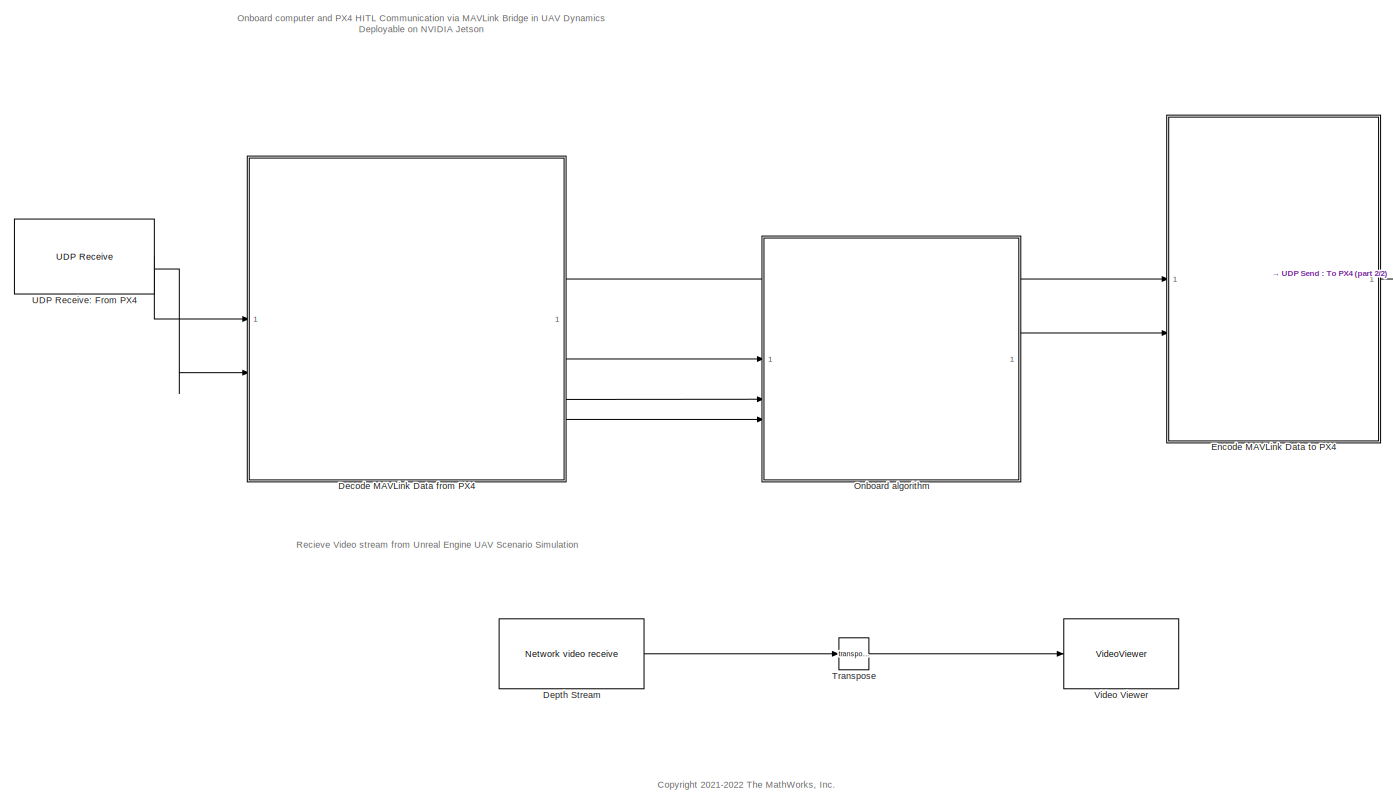
[diagram: root canvas - part 1/2, most of the canvas]
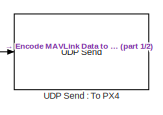
[diagram: root canvas - part 2/2, middle right region]
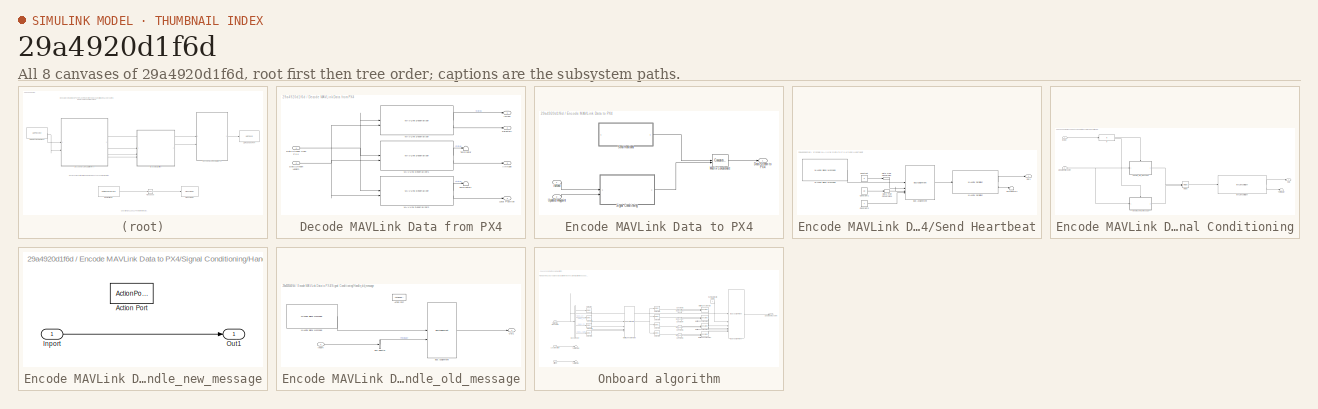
[diagram: thumbnail index - all 8 canvases of the model, root first then tree order]
MODEL slx_29a4920d1f6d
KIND model
CONFIG AbsTol = auto
CONFIG EnableMultiTasking = off
CONFIG FixedStep = auto
CONFIG MaxStep = auto
CONFIG MinStep = auto
CONFIG RelTol = 1e-3
CONFIG SampleTimeConstraint = Unconstrained
CONFIG SolverName = FixedStepAuto
CONFIG StartTime = 0.0
CONFIG StopTime = inf
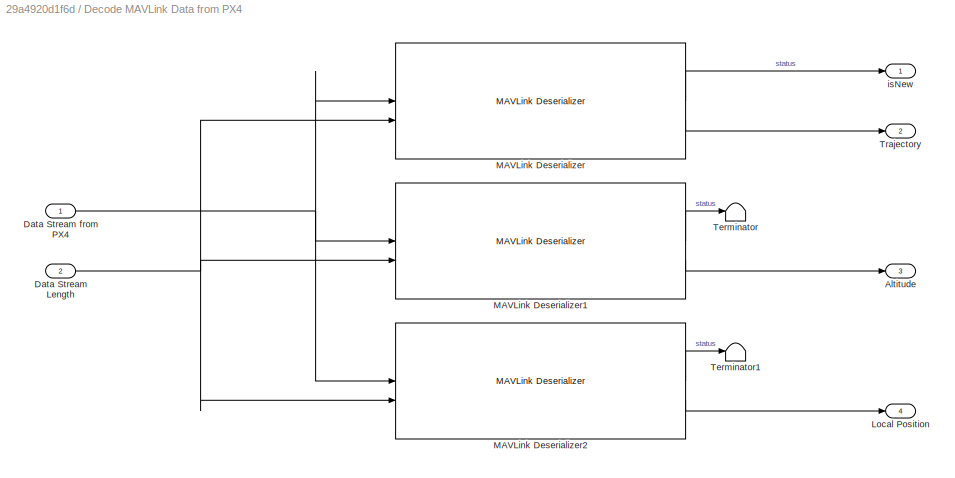
BLOCK [SubSystem] Decode MAVLink Data from PX4
BLOCK [Outport] Decode MAVLink Data from PX4/Altitude
  Port = 3
BLOCK [Inport] Decode MAVLink Data from PX4/Data Stream Length
  Port = 2
BLOCK [Inport] Decode MAVLink Data from PX4/Data Stream from PX4
BLOCK [Outport] Decode MAVLink Data from PX4/Local Position 
  Port = 4
BLOCK [Reference] Decode MAVLink Data from PX4/MAVLink Deserializer  REF=uavmavlinklib/MAVLink Deserializer
  SourceBlock = uavmavlinklib/MAVLink Deserializer
  SourceType = MAVLink Deserializer
BLOCK [Reference] Decode MAVLink Data from PX4/MAVLink Deserializer1  REF=uavmavlinklib/MAVLink Deserializer
  SourceBlock = uavmavlinklib/MAVLink Deserializer
  SourceType = MAVLink Deserializer
BLOCK [Reference] Decode MAVLink Data from PX4/MAVLink Deserializer2  REF=uavmavlinklib/MAVLink Deserializer
  SourceBlock = uavmavlinklib/MAVLink Deserializer
  SourceType = MAVLink Deserializer
BLOCK [Terminator] Decode MAVLink Data from PX4/Terminator
BLOCK [Terminator] Decode MAVLink Data from PX4/Terminator1
BLOCK [Outport] Decode MAVLink Data from PX4/Trajectory
  Port = 2
BLOCK [Outport] Decode MAVLink Data from PX4/isNew
BLOCK [Reference] Depth Stream  REF=nvidiaAVlib/Network video receive
  SourceBlock = nvidiaAVlib/Network video receive
  SourceType = nvidiacoder.common.GstVisionDataReceive
BLOCK [SubSystem] Encode MAVLink Data to PX4
BLOCK [Outport] Encode MAVLink Data to PX4/Data Stream to PX4
BLOCK [Concatenate] Encode MAVLink Data to PX4/Matrix Concatenate
  ConcatenateDimension = 2
BLOCK [SubSystem] Encode MAVLink Data to PX4/Send Heartbeat
BLOCK [BusAssignment] Encode MAVLink Data to PX4/Send Heartbeat/Bus Assignment
  AssignedSignals = Payload.autopilot,Payload.type,Payload.system_status
BLOCK [Constant] Encode MAVLink Data to PX4/Send Heartbeat/Constant
  SampleTime = -1
  Value = 8
BLOCK [Constant] Encode MAVLink Data to PX4/Send Heartbeat/Constant1
  SampleTime = -1
  Value = 18
BLOCK [Constant] Encode MAVLink Data to PX4/Send Heartbeat/Constant2
  OutDataTypeStr = uint8
  SampleTime = -1
  Value = 4
BLOCK [DataTypeConversion] Encode MAVLink Data to PX4/Send Heartbeat/Data Type Conversion
  OutDataTypeStr = uint8
  RndMeth = Floor
  SaturateOnIntegerOverflow = off
BLOCK [DataTypeConversion] Encode MAVLink Data to PX4/Send Heartbeat/Data Type Conversion1
  OutDataTypeStr = uint8
  RndMeth = Floor
  SaturateOnIntegerOverflow = off
BLOCK [Reference] Encode MAVLink Data to PX4/Send Heartbeat/MAVLink Blank Message  REF=uavmavlinklib/MAVLink Blank Message
  SourceBlock = uavmavlinklib/MAVLink Blank Message
  SourceType = MAVLink Blank Message
BLOCK [Reference] Encode MAVLink Data to PX4/Send Heartbeat/MAVLink Serializer  REF=uavmavlinklib/MAVLink Serializer
  SourceBlock = uavmavlinklib/MAVLink Serializer
  SourceType = MAVLink Serializer
BLOCK [Outport] Encode MAVLink Data to PX4/Send Heartbeat/Out1
BLOCK [Terminator] Encode MAVLink Data to PX4/Send Heartbeat/Terminator4
BLOCK [SubSystem] Encode MAVLink Data to PX4/Signal Conditioning
BLOCK [SubSystem] Encode MAVLink Data to PX4/Signal Conditioning/Handle_new_message
  TreatAsAtomicUnit = on
BLOCK [ActionPort] Encode MAVLink Data to PX4/Signal Conditioning/Handle_new_message/Action Port
  ActionPortLabel = else
BLOCK [Inport] Encode MAVLink Data to PX4/Signal Conditioning/Handle_new_message/Inport
BLOCK [Outport] Encode MAVLink Data to PX4/Signal Conditioning/Handle_new_message/Out1
BLOCK [SubSystem] Encode MAVLink Data to PX4/Signal Conditioning/Handle_old_message
  TreatAsAtomicUnit = on
BLOCK [ActionPort] Encode MAVLink Data to PX4/Signal Conditioning/Handle_old_message/Action Port
  ActionPortLabel = if(u1==0)
BLOCK [BusAssignment] Encode MAVLink Data to PX4/Signal Conditioning/Handle_old_message/Bus Assignment
  AssignedSignals = Payload
BLOCK [BusSelector] Encode MAVLink Data to PX4/Signal Conditioning/Handle_old_message/Bus Selector
  OutputSignals = Payload
BLOCK [Inport] Encode MAVLink Data to PX4/Signal Conditioning/Handle_old_message/Inport
BLOCK [Reference] Encode MAVLink Data to PX4/Signal Conditioning/Handle_old_message/MAVLink Blank Message  REF=uavmavlinklib/MAVLink Blank Message
  SourceBlock = uavmavlinklib/MAVLink Blank Message
  SourceType = MAVLink Blank Message
BLOCK [Outport] Encode MAVLink Data to PX4/Signal Conditioning/Handle_old_message/Out1
BLOCK [If] Encode MAVLink Data to PX4/Signal Conditioning/If
  IfExpression = u1==0
BLOCK [Reference] Encode MAVLink Data to PX4/Signal Conditioning/MAVLink Serializer  REF=uavmavlinklib/MAVLink Serializer
  SourceBlock = uavmavlinklib/MAVLink Serializer
  SourceType = MAVLink Serializer
BLOCK [Merge] Encode MAVLink Data to PX4/Signal Conditioning/Merge
BLOCK [Outport] Encode MAVLink Data to PX4/Signal Conditioning/Out1
BLOCK [Terminator] Encode MAVLink Data to PX4/Signal Conditioning/Terminator
BLOCK [Inport] Encode MAVLink Data to PX4/Signal Conditioning/Updated Waypoint
  Port = 2
BLOCK [Inport] Encode MAVLink Data to PX4/Signal Conditioning/isNew
BLOCK [Inport] Encode MAVLink Data to PX4/Updated Waypoint
  Port = 2
BLOCK [Inport] Encode MAVLink Data to PX4/isNew
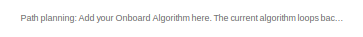
[diagram: Onboard algorithm - part 1/3, top left region]
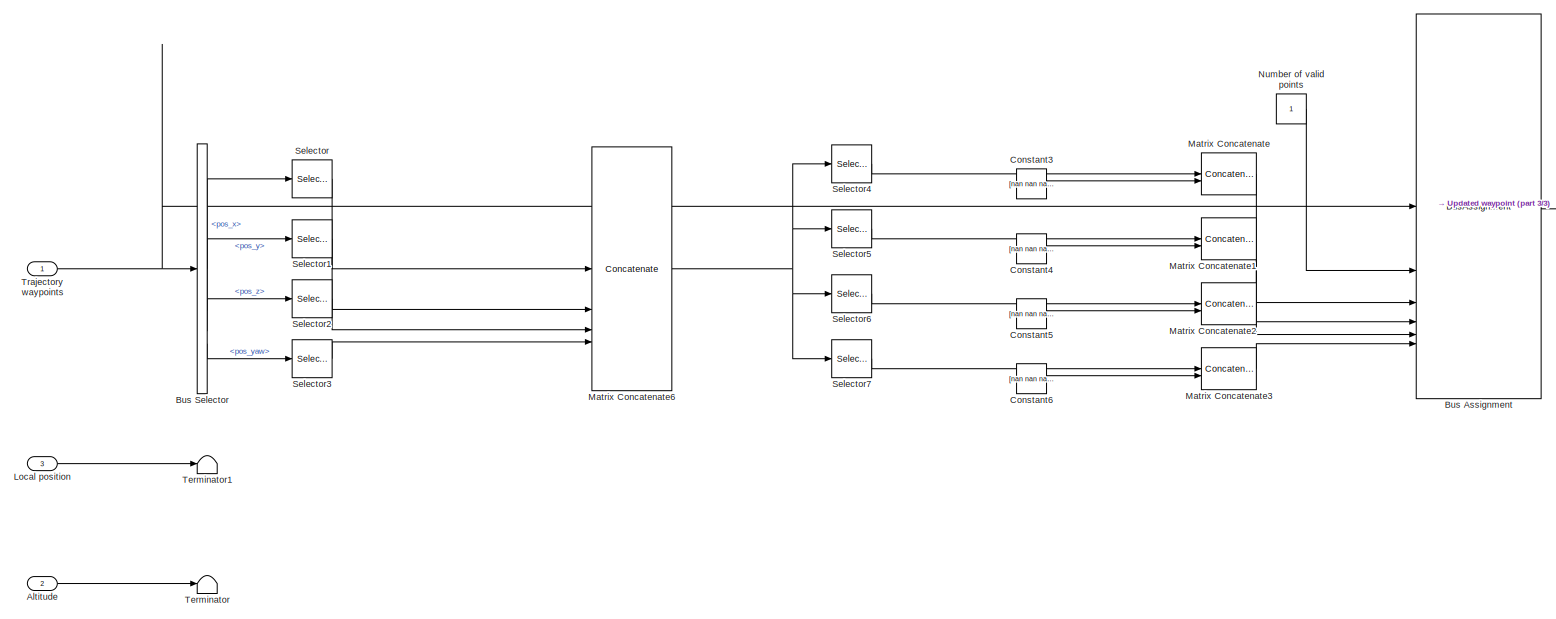
[diagram: Onboard algorithm - part 2/3, most of the canvas]
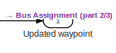
[diagram: Onboard algorithm - part 3/3, middle right region]
BLOCK [SubSystem] Onboard algorithm
BLOCK [Inport] Onboard algorithm/Altitude
  Port = 2
BLOCK [BusAssignment] Onboard algorithm/Bus Assignment
  AssignedSignals = Payload.valid_points,Payload.pos_x,Payload.pos_y,Payload.pos_z,Payload.pos_yaw
BLOCK [BusSelector] Onboard algorithm/Bus Selector
  OutputSignals = Payload.pos_x,Payload.pos_y,Payload.pos_z,Payload.pos_yaw
BLOCK [Constant] Onboard algorithm/Constant3
  OutDataTypeStr = single
  SampleTime = -1
  Value = [nan nan nan nan]
BLOCK [Constant] Onboard algorithm/Constant4
  OutDataTypeStr = single
  SampleTime = -1
  Value = [nan nan nan nan]
BLOCK [Constant] Onboard algorithm/Constant5
  OutDataTypeStr = single
  SampleTime = -1
  Value = [nan nan nan nan]
BLOCK [Constant] Onboard algorithm/Constant6
  OutDataTypeStr = single
  SampleTime = -1
  Value = [nan nan nan nan]
BLOCK [Inport] Onboard algorithm/Local position
  Port = 3
BLOCK [Concatenate] Onboard algorithm/Matrix Concatenate
  ConcatenateDimension = 2
BLOCK [Concatenate] Onboard algorithm/Matrix Concatenate1
  ConcatenateDimension = 2
BLOCK [Concatenate] Onboard algorithm/Matrix Concatenate2
  ConcatenateDimension = 2
BLOCK [Concatenate] Onboard algorithm/Matrix Concatenate3
  ConcatenateDimension = 2
BLOCK [Concatenate] Onboard algorithm/Matrix Concatenate6
  Mode = Multidimensional array
  NumInputs = 4
BLOCK [Constant] Onboard algorithm/Number of valid points
  OutDataTypeStr = uint8
  SampleTime = -1
BLOCK [Selector] Onboard algorithm/Selector
  IndexOptions = Index vector (dialog)
  Indices = 2
  InputPortWidth = 5
  OutputSizes = 1
BLOCK [Selector] Onboard algorithm/Selector1
  IndexOptions = Index vector (dialog)
  Indices = 2
  InputPortWidth = 5
  OutputSizes = 1
BLOCK [Selector] Onboard algorithm/Selector2
  IndexOptions = Index vector (dialog)
  Indices = 2
  InputPortWidth = 5
  OutputSizes = 1
BLOCK [Selector] Onboard algorithm/Selector3
  IndexOptions = Index vector (dialog)
  Indices = 2
  InputPortWidth = 5
  OutputSizes = 1
BLOCK [Selector] Onboard algorithm/Selector4
  IndexOptions = Index vector (dialog)
  Indices = 1
  InputPortWidth = 4
  OutputSizes = 1
BLOCK [Selector] Onboard algorithm/Selector5
  IndexOptions = Index vector (dialog)
  Indices = 2
  InputPortWidth = 4
  OutputSizes = 1
BLOCK [Selector] Onboard algorithm/Selector6
  IndexOptions = Index vector (dialog)
  Indices = 3
  InputPortWidth = 4
  OutputSizes = 1
BLOCK [Selector] Onboard algorithm/Selector7
  IndexOptions = Index vector (dialog)
  Indices = 4
  InputPortWidth = 4
  OutputSizes = 1
BLOCK [Terminator] Onboard algorithm/Terminator
BLOCK [Terminator] Onboard algorithm/Terminator1
BLOCK [Inport] Onboard algorithm/Trajectory waypoints
BLOCK [Outport] Onboard algorithm/Updated waypoint
BLOCK [Math] Transpose
  Operator = transpose
BLOCK [Reference] UDP Receive: From PX4  REF=nvidiaSharedBlocks/UDP Receive
  SourceBlock = nvidiaSharedBlocks/UDP Receive
  SourceType = UDP Receive
BLOCK [Reference] UDP Send : To PX4  REF=nvidiaSharedBlocks/UDP Send
  SourceBlock = nvidiaSharedBlocks/UDP Send
  SourceType = UDP Send
BLOCK [VideoViewer] Video Viewer
  FigPos = [1 1038 1920 938]
  ScopeSpecificationString = vipscopes.VideoViewerScopeCfg('CurrentConfiguration', extmgr.ConfigurationSet(extmgr.Configuration('Core','General UI',true),extmgr.Configuration('Core','Source UI',true),extmgr.Configuration('Sources','WiredSimulink',true),extmgr.Configuration('Visuals','Video',true),extmgr.Configuration('Tools','Image Navigation Tools',true),extmgr.Configuration('Tools','Image Tool',true),extmgr.Configuration('T...<+73ch>
ANNOTATION (root): Onboard computer and PX4 HITL Communication via MAVLink Bridge in UAV Dynamics Deployable on NVIDIA Jetson
ANNOTATION (root): <copyright redacted>
ANNOTATION (root): Recieve Video stream from Unreal Engine UAV Scenario Simulation
ANNOTATION Onboard algorithm: Path planning: Add your Onboard Algorithm here. The current algorithm loops back the input data
NET Decode MAVLink Data from PX4/Data Stream Length:1 -> Decode MAVLink Data from PX4/MAVLink Deserializer1:2, Decode MAVLink Data from PX4/MAVLink Deserializer2:2, Decode MAVLink Data from PX4/MAVLink Deserializer:2
NET Decode MAVLink Data from PX4/Data Stream from PX4:1 -> Decode MAVLink Data from PX4/MAVLink Deserializer1:1, Decode MAVLink Data from PX4/MAVLink Deserializer2:1, Decode MAVLink Data from PX4/MAVLink Deserializer:1
LINE Decode MAVLink Data from PX4/MAVLink Deserializer1:1 -> Decode MAVLink Data from PX4/Terminator:1
LINE Decode MAVLink Data from PX4/MAVLink Deserializer1:2 -> Decode MAVLink Data from PX4/Altitude:1
LINE Decode MAVLink Data from PX4/MAVLink Deserializer2:1 -> Decode MAVLink Data from PX4/Terminator1:1
LINE Decode MAVLink Data from PX4/MAVLink Deserializer2:2 -> Decode MAVLink Data from PX4/Local Position :1
LINE Decode MAVLink Data from PX4/MAVLink Deserializer:1 -> Decode MAVLink Data from PX4/isNew:1
LINE Decode MAVLink Data from PX4/MAVLink Deserializer:2 -> Decode MAVLink Data from PX4/Trajectory:1
LINE Decode MAVLink Data from PX4:1 -> Encode MAVLink Data to PX4:1
LINE Decode MAVLink Data from PX4:2 -> Onboard algorithm:1
LINE Decode MAVLink Data from PX4:3 -> Onboard algorithm:2
LINE Decode MAVLink Data from PX4:4 -> Onboard algorithm:3
LINE Depth Stream:1 -> Transpose:1
LINE Encode MAVLink Data to PX4/Matrix Concatenate:1 -> Encode MAVLink Data to PX4/Data Stream to PX4:1
LINE Encode MAVLink Data to PX4/Send Heartbeat/Bus Assignment:1 -> Encode MAVLink Data to PX4/Send Heartbeat/MAVLink Serializer:1
LINE Encode MAVLink Data to PX4/Send Heartbeat/Constant1:1 -> Encode MAVLink Data to PX4/Send Heartbeat/Data Type Conversion1:1
LINE Encode MAVLink Data to PX4/Send Heartbeat/Constant2:1 -> Encode MAVLink Data to PX4/Send Heartbeat/Bus Assignment:4
LINE Encode MAVLink Data to PX4/Send Heartbeat/Constant:1 -> Encode MAVLink Data to PX4/Send Heartbeat/Data Type Conversion:1
LINE Encode MAVLink Data to PX4/Send Heartbeat/Data Type Conversion1:1 -> Encode MAVLink Data to PX4/Send Heartbeat/Bus Assignment:3
LINE Encode MAVLink Data to PX4/Send Heartbeat/Data Type Conversion:1 -> Encode MAVLink Data to PX4/Send Heartbeat/Bus Assignment:2
LINE Encode MAVLink Data to PX4/Send Heartbeat/MAVLink Blank Message:1 -> Encode MAVLink Data to PX4/Send Heartbeat/Bus Assignment:1
LINE Encode MAVLink Data to PX4/Send Heartbeat/MAVLink Serializer:1 -> Encode MAVLink Data to PX4/Send Heartbeat/Out1:1
LINE Encode MAVLink Data to PX4/Send Heartbeat/MAVLink Serializer:2 -> Encode MAVLink Data to PX4/Send Heartbeat/Terminator4:1
LINE Encode MAVLink Data to PX4/Send Heartbeat:1 -> Encode MAVLink Data to PX4/Matrix Concatenate:1
LINE Encode MAVLink Data to PX4/Signal Conditioning/Handle_new_message/Inport:1 -> Encode MAVLink Data to PX4/Signal Conditioning/Handle_new_message/Out1:1
LINE Encode MAVLink Data to PX4/Signal Conditioning/Handle_new_message:1 -> Encode MAVLink Data to PX4/Signal Conditioning/Merge:2
LINE Encode MAVLink Data to PX4/Signal Conditioning/Handle_old_message/Bus Assignment:1 -> Encode MAVLink Data to PX4/Signal Conditioning/Handle_old_message/Out1:1
LINE Encode MAVLink Data to PX4/Signal Conditioning/Handle_old_message/Bus Selector:1 -> Encode MAVLink Data to PX4/Signal Conditioning/Handle_old_message/Bus Assignment:2
LINE Encode MAVLink Data to PX4/Signal Conditioning/Handle_old_message/Inport:1 -> Encode MAVLink Data to PX4/Signal Conditioning/Handle_old_message/Bus Selector:1
LINE Encode MAVLink Data to PX4/Signal Conditioning/Handle_old_message/MAVLink Blank Message:1 -> Encode MAVLink Data to PX4/Signal Conditioning/Handle_old_message/Bus Assignment:1
LINE Encode MAVLink Data to PX4/Signal Conditioning/Handle_old_message:1 -> Encode MAVLink Data to PX4/Signal Conditioning/Merge:1
LINE Encode MAVLink Data to PX4/Signal Conditioning/If:1 -> Encode MAVLink Data to PX4/Signal Conditioning/Handle_old_message:ifaction
LINE Encode MAVLink Data to PX4/Signal Conditioning/If:2 -> Encode MAVLink Data to PX4/Signal Conditioning/Handle_new_message:ifaction
LINE Encode MAVLink Data to PX4/Signal Conditioning/MAVLink Serializer:1 -> Encode MAVLink Data to PX4/Signal Conditioning/Out1:1
LINE Encode MAVLink Data to PX4/Signal Conditioning/MAVLink Serializer:2 -> Encode MAVLink Data to PX4/Signal Conditioning/Terminator:1
LINE Encode MAVLink Data to PX4/Signal Conditioning/Merge:1 -> Encode MAVLink Data to PX4/Signal Conditioning/MAVLink Serializer:1
NET Encode MAVLink Data to PX4/Signal Conditioning/Updated Waypoint:1 -> Encode MAVLink Data to PX4/Signal Conditioning/Handle_new_message:1, Encode MAVLink Data to PX4/Signal Conditioning/Handle_old_message:1
LINE Encode MAVLink Data to PX4/Signal Conditioning/isNew:1 -> Encode MAVLink Data to PX4/Signal Conditioning/If:1
LINE Encode MAVLink Data to PX4/Signal Conditioning:1 -> Encode MAVLink Data to PX4/Matrix Concatenate:2
LINE Encode MAVLink Data to PX4/Updated Waypoint:1 -> Encode MAVLink Data to PX4/Signal Conditioning:2
LINE Encode MAVLink Data to PX4/isNew:1 -> Encode MAVLink Data to PX4/Signal Conditioning:1
LINE Encode MAVLink Data to PX4:1 -> UDP Send : To PX4:1
LINE Onboard algorithm/Altitude:1 -> Onboard algorithm/Terminator:1
LINE Onboard algorithm/Bus Assignment:1 -> Onboard algorithm/Updated waypoint:1
LINE Onboard algorithm/Bus Selector:1 -> Onboard algorithm/Selector:1
LINE Onboard algorithm/Bus Selector:2 -> Onboard algorithm/Selector1:1
LINE Onboard algorithm/Bus Selector:3 -> Onboard algorithm/Selector2:1
LINE Onboard algorithm/Bus Selector:4 -> Onboard algorithm/Selector3:1
LINE Onboard algorithm/Constant3:1 -> Onboard algorithm/Matrix Concatenate:2
LINE Onboard algorithm/Constant4:1 -> Onboard algorithm/Matrix Concatenate1:2
LINE Onboard algorithm/Constant5:1 -> Onboard algorithm/Matrix Concatenate2:2
LINE Onboard algorithm/Constant6:1 -> Onboard algorithm/Matrix Concatenate3:2
LINE Onboard algorithm/Local position:1 -> Onboard algorithm/Terminator1:1
LINE Onboard algorithm/Matrix Concatenate1:1 -> Onboard algorithm/Bus Assignment:4
LINE Onboard algorithm/Matrix Concatenate2:1 -> Onboard algorithm/Bus Assignment:5
LINE Onboard algorithm/Matrix Concatenate3:1 -> Onboard algorithm/Bus Assignment:6
NET Onboard algorithm/Matrix Concatenate6:1 -> Onboard algorithm/Selector4:1, Onboard algorithm/Selector5:1, Onboard algorithm/Selector6:1, Onboard algorithm/Selector7:1
LINE Onboard algorithm/Matrix Concatenate:1 -> Onboard algorithm/Bus Assignment:3
LINE Onboard algorithm/Number of valid points:1 -> Onboard algorithm/Bus Assignment:2
LINE Onboard algorithm/Selector1:1 -> Onboard algorithm/Matrix Concatenate6:2
LINE Onboard algorithm/Selector2:1 -> Onboard algorithm/Matrix Concatenate6:3
LINE Onboard algorithm/Selector3:1 -> Onboard algorithm/Matrix Concatenate6:4
LINE Onboard algorithm/Selector4:1 -> Onboard algorithm/Matrix Concatenate:1
LINE Onboard algorithm/Selector5:1 -> Onboard algorithm/Matrix Concatenate1:1
LINE Onboard algorithm/Selector6:1 -> Onboard algorithm/Matrix Concatenate2:1
LINE Onboard algorithm/Selector7:1 -> Onboard algorithm/Matrix Concatenate3:1
LINE Onboard algorithm/Selector:1 -> Onboard algorithm/Matrix Concatenate6:1
NET Onboard algorithm/Trajectory waypoints:1 -> Onboard algorithm/Bus Assignment:1, Onboard algorithm/Bus Selector:1
LINE Onboard algorithm:1 -> Encode MAVLink Data to PX4:2
LINE Transpose:1 -> Video Viewer:1
LINE UDP Receive: From PX4:1 -> Decode MAVLink Data from PX4:1
LINE UDP Receive: From PX4:2 -> Decode MAVLink Data from PX4:2
note: NET lines group one-source signal fan-out (src -> all destinations, sorted); 1:1 wires keep LINE
